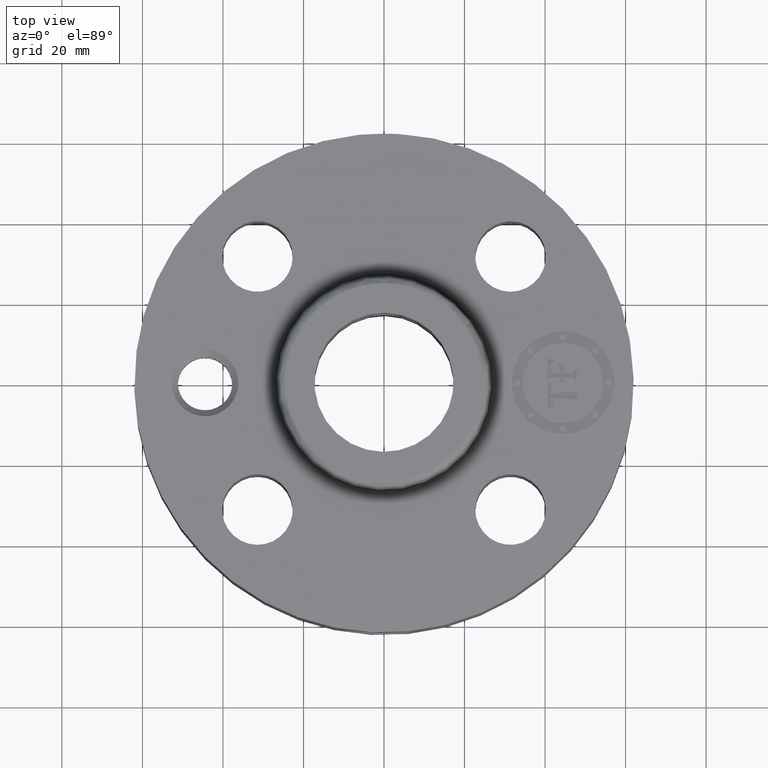
[diagram: clean part render]
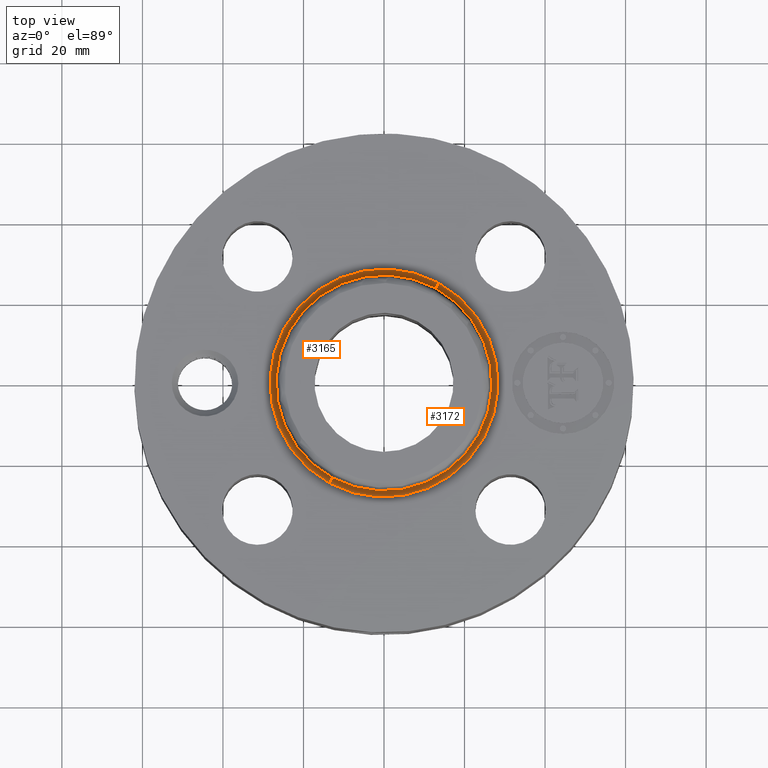
[diagram: same view with one multi-face feature highlighted, each face labeled with its STEP entity id]
A machine part, top view. The highlighted faces form ONE feature: a constant-radius fillet chain: 2 tangent blend faces with common blend radius 1.524 mm. The faces share edges in the B-rep.
Their STEP definitions:
[1] entity #3165 (Torus):
#1954=AXIS2_PLACEMENT_3D('Circle Axis2P3D',#1952,#1953,$) ;
#2066=AXIS2_PLACEMENT_3D('Circle Axis2P3D',#2064,#2065,$) ;
#3147=AXIS2_PLACEMENT_3D('Torus Axis2P3D',#3144,#3145,#3146) ;
#3151=AXIS2_PLACEMENT_3D('Circle Axis2P3D',#3149,#3150,$) ;
#3156=AXIS2_PLACEMENT_3D('Circle Axis2P3D',#3154,#3155,$) ;
#1952=CARTESIAN_POINT('Axis2P3D Location',(0.,0.,1.61477065544)) ;
#1956=CARTESIAN_POINT('Vertex',(-0.50589375414,-0.926032305444,1.61477065544)) ;
#1958=CARTESIAN_POINT('Vertex',(0.50589375414,0.926032305444,1.61477065544)) ;
#2064=CARTESIAN_POINT('Axis2P3D Location',(0.,0.,1.56000000001)) ;
#2068=CARTESIAN_POINT('Vertex',(-0.534549824921,-0.978486891162,1.56000000001)) ;
#2070=CARTESIAN_POINT('Vertex',(0.534549824921,0.978486891162,1.56000000001)) ;
#3144=CARTESIAN_POINT('Axis2P3D Location',(0.,0.,1.62000000001)) ;
#3149=CARTESIAN_POINT('Axis2P3D Location',(-0.534549824921,-0.978486891162,1.62000000001)) ;
#3154=CARTESIAN_POINT('Axis2P3D Location',(0.534549824921,0.978486891162,1.62000000001)) ;
#1953=DIRECTION('Axis2P3D Direction',(0.,0.,-0.0393700787402)) ;
#2065=DIRECTION('Axis2P3D Direction',(0.,0.,-0.0393700787402)) ;
#3145=DIRECTION('Axis2P3D Direction',(0.,0.,-0.0393700787402)) ;
#3146=DIRECTION('Axis2P3D XDirection',(0.0188750212049,0.0345504945626,0.)) ;
#3150=DIRECTION('Axis2P3D Direction',(0.0345504945626,-0.0188750212049,0.)) ;
#3155=DIRECTION('Axis2P3D Direction',(-0.0345504945626,0.0188750212049,0.)) ;
#3160=ORIENTED_EDGE('',*,*,#2072,.F.) ;
#3161=ORIENTED_EDGE('',*,*,#3153,.T.) ;
#3162=ORIENTED_EDGE('',*,*,#1960,.T.) ;
#3163=ORIENTED_EDGE('',*,*,#3158,.F.) ;
#3165=ADVANCED_FACE('PartBody',(#3164),#3148,.F.) ;
#1955=CIRCLE('generated circle',#1954,1.05520818856) ;
#2067=CIRCLE('generated circle',#2066,1.11497987045) ;
#3152=CIRCLE('generated circle',#3151,0.0600000000002) ;
#3157=CIRCLE('generated circle',#3156,0.0600000000002) ;
#3148=TOROIDAL_SURFACE('homeo Torus',#3147,1.11497987045,0.0600000000002) ;
#1960=EDGE_CURVE('',#1957,#1959,#1955,.T.) ;
#2072=EDGE_CURVE('',#2069,#2071,#2067,.T.) ;
#3153=EDGE_CURVE('',#2069,#1957,#3152,.T.) ;
#3158=EDGE_CURVE('',#2071,#1959,#3157,.T.) ;
#3159=EDGE_LOOP('',(#3160,#3161,#3162,#3163)) ;
#3164=FACE_OUTER_BOUND('',#3159,.T.) ;
#1957=VERTEX_POINT('',#1956) ;
#1959=VERTEX_POINT('',#1958) ;
#2069=VERTEX_POINT('',#2068) ;
#2071=VERTEX_POINT('',#2070) ;
[2] entity #3172 (Torus):
#1980=AXIS2_PLACEMENT_3D('Circle Axis2P3D',#1978,#1979,$) ;
#2075=AXIS2_PLACEMENT_3D('Circle Axis2P3D',#2073,#2074,$) ;
#3147=AXIS2_PLACEMENT_3D('Torus Axis2P3D',#3144,#3145,#3146) ;
#3151=AXIS2_PLACEMENT_3D('Circle Axis2P3D',#3149,#3150,$) ;
#3156=AXIS2_PLACEMENT_3D('Circle Axis2P3D',#3154,#3155,$) ;
#1956=CARTESIAN_POINT('Vertex',(-0.50589375414,-0.926032305444,1.61477065544)) ;
#1958=CARTESIAN_POINT('Vertex',(0.50589375414,0.926032305444,1.61477065544)) ;
#1978=CARTESIAN_POINT('Axis2P3D Location',(0.,0.,1.61477065544)) ;
#2068=CARTESIAN_POINT('Vertex',(-0.534549824921,-0.978486891162,1.56000000001)) ;
#2070=CARTESIAN_POINT('Vertex',(0.534549824921,0.978486891162,1.56000000001)) ;
#2073=CARTESIAN_POINT('Axis2P3D Location',(0.,0.,1.56000000001)) ;
#3144=CARTESIAN_POINT('Axis2P3D Location',(0.,0.,1.62000000001)) ;
#3149=CARTESIAN_POINT('Axis2P3D Location',(-0.534549824921,-0.978486891162,1.62000000001)) ;
#3154=CARTESIAN_POINT('Axis2P3D Location',(0.534549824921,0.978486891162,1.62000000001)) ;
#1979=DIRECTION('Axis2P3D Direction',(0.,0.,-0.0393700787402)) ;
#2074=DIRECTION('Axis2P3D Direction',(0.,0.,-0.0393700787402)) ;
#3145=DIRECTION('Axis2P3D Direction',(0.,0.,-0.0393700787402)) ;
#3146=DIRECTION('Axis2P3D XDirection',(0.0188750212049,0.0345504945626,0.)) ;
#3150=DIRECTION('Axis2P3D Direction',(0.0345504945626,-0.0188750212049,0.)) ;
#3155=DIRECTION('Axis2P3D Direction',(-0.0345504945626,0.0188750212049,0.)) ;
#3167=ORIENTED_EDGE('',*,*,#2077,.F.) ;
#3168=ORIENTED_EDGE('',*,*,#3158,.T.) ;
#3169=ORIENTED_EDGE('',*,*,#1982,.T.) ;
#3170=ORIENTED_EDGE('',*,*,#3153,.F.) ;
#3172=ADVANCED_FACE('PartBody',(#3171),#3148,.F.) ;
#1981=CIRCLE('generated circle',#1980,1.05520818856) ;
#2076=CIRCLE('generated circle',#2075,1.11497987045) ;
#3152=CIRCLE('generated circle',#3151,0.0600000000002) ;
#3157=CIRCLE('generated circle',#3156,0.0600000000002) ;
#3148=TOROIDAL_SURFACE('homeo Torus',#3147,1.11497987045,0.0600000000002) ;
#1982=EDGE_CURVE('',#1959,#1957,#1981,.T.) ;
#2077=EDGE_CURVE('',#2071,#2069,#2076,.T.) ;
#3153=EDGE_CURVE('',#2069,#1957,#3152,.T.) ;
#3158=EDGE_CURVE('',#2071,#1959,#3157,.T.) ;
#3166=EDGE_LOOP('',(#3167,#3168,#3169,#3170)) ;
#3171=FACE_OUTER_BOUND('',#3166,.T.) ;
#1957=VERTEX_POINT('',#1956) ;
#1959=VERTEX_POINT('',#1958) ;
#2069=VERTEX_POINT('',#2068) ;
#2071=VERTEX_POINT('',#2070) ;